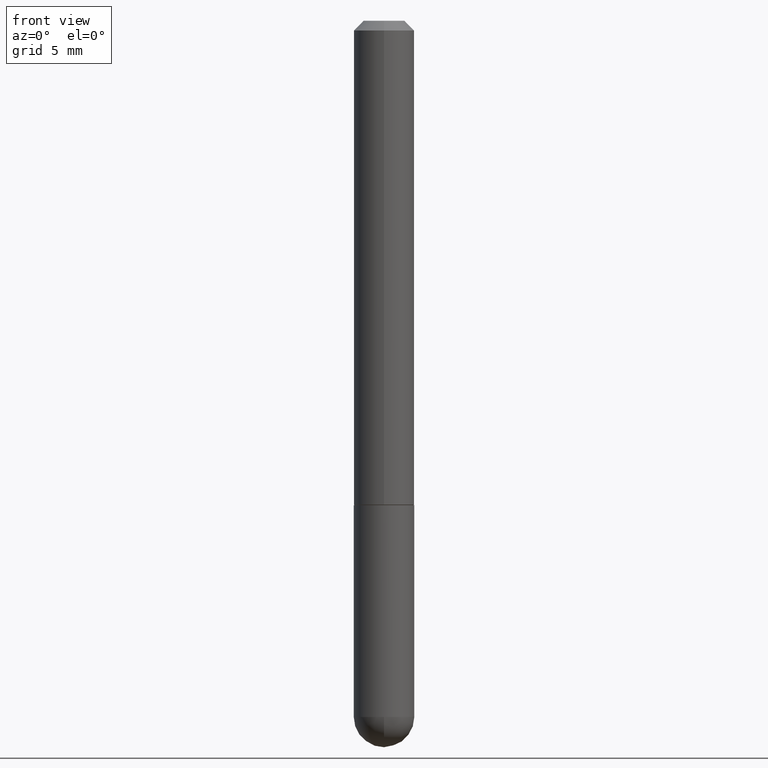
[diagram: clean part render]
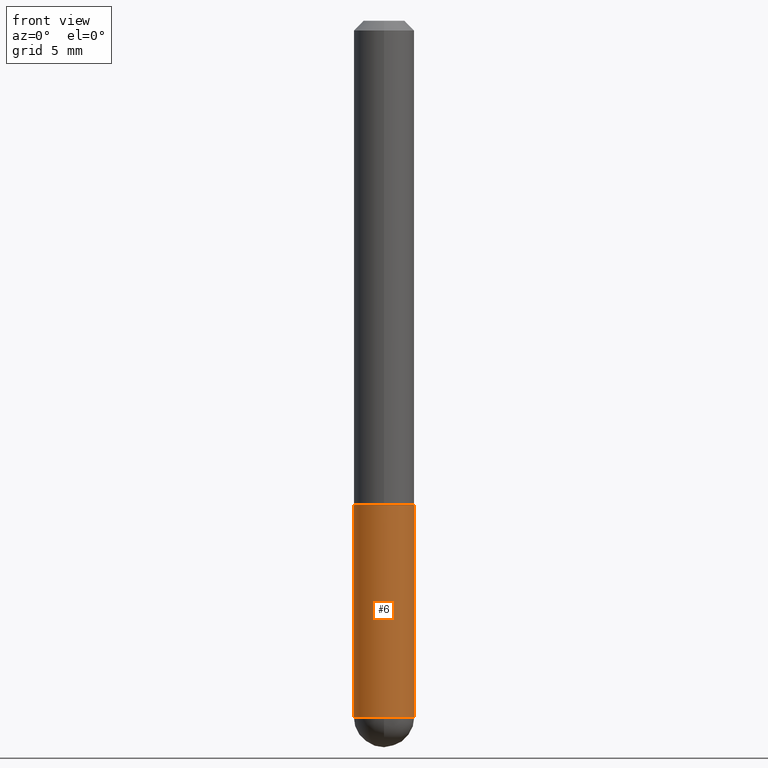
[diagram: same view with one face highlighted and labeled with its STEP entity id]
A machine part, front view. The second image highlights one B-rep face of the part: STEP entity #6.
In plain terms, the highlighted cylindrical surface (edge-blend (fillet) strip) has radius 1.5875 mm, axis along (-0, 0, 1).
Its self-contained STEP definition (entity closure, byte-faithful):
#4 = CIRCLE ( 'NONE', #287, 0.06250000000000001388 ) ;
#6 = ADVANCED_FACE ( 'NONE', ( #192 ), #360, .T. ) ;
#32 = CARTESIAN_POINT ( 'NONE',  ( 0.06250000000000001388, -3.927916506198536858E-15, -0.9999999999999996669 ) ) ;
#38 = DIRECTION ( 'NONE',  ( 1.000000000000000000, -6.982962677686267499E-15, 4.876176775795936353E-29 ) ) ;
#40 = AXIS2_PLACEMENT_3D ( 'NONE', #295, #330, #266 ) ;
#42 = VERTEX_POINT ( 'NONE', #327 ) ;
#48 = EDGE_CURVE ( 'NONE', #276, #148, #222, .T. ) ;
#49 = CARTESIAN_POINT ( 'NONE',  ( 2.445468806185136036E-29, -3.491481338843144399E-15, -0.9999999999999996669 ) ) ;
#59 = EDGE_CURVE ( 'NONE', #42, #389, #235, .T. ) ;
#71 = ORIENTED_EDGE ( 'NONE', *, *, #291, .T. ) ;
#73 = CARTESIAN_POINT ( 'NONE',  ( -0.06249999999999997918, 4.440892098500624683E-16, -3.074334431409315413E-30 ) ) ;
#96 = CIRCLE ( 'NONE', #178, 0.06249999999999995143 ) ;
#98 = DIRECTION ( 'NONE',  ( -2.445468806185136597E-29, 3.491481338843145583E-15, 1.000000000000000000 ) ) ;
#116 = CARTESIAN_POINT ( 'NONE',  ( 0.06249999999999997918, -4.364351673553915708E-16, 3.047610484872459170E-30 ) ) ;
#129 = CARTESIAN_POINT ( 'NONE',  ( 3.515361408891131616E-29, -5.019004424587019187E-15, -1.437499999999999112 ) ) ;
#141 = DIRECTION ( 'NONE',  ( -2.445468806185136877E-29, 3.491481338843145188E-15, 1.000000000000000000 ) ) ;
#148 = VERTEX_POINT ( 'NONE', #344 ) ;
#178 = AXIS2_PLACEMENT_3D ( 'NONE', #129, #98, #341 ) ;
#192 = FACE_OUTER_BOUND ( 'NONE', #260, .T. ) ;
#200 = VERTEX_POINT ( 'NONE', #32 ) ;
#201 = DIRECTION ( 'NONE',  ( -2.445468806185136597E-29, 3.491481338843145583E-15, 1.000000000000000000 ) ) ;
#219 = EDGE_CURVE ( 'NONE', #389, #200, #4, .T. ) ;
#222 = CIRCLE ( 'NONE', #40, 0.06249999999999995143 ) ;
#233 = ORIENTED_EDGE ( 'NONE', *, *, #59, .F. ) ;
#235 = LINE ( 'NONE', #73, #359 ) ;
#237 = DIRECTION ( 'NONE',  ( -2.445468806185136877E-29, 3.491481338843145188E-15, 1.000000000000000000 ) ) ;
#260 = EDGE_LOOP ( 'NONE', ( #233, #397, #381, #71, #350 ) ) ;
#263 = EDGE_CURVE ( 'NONE', #42, #276, #96, .T. ) ;
#266 = DIRECTION ( 'NONE',  ( 1.000000000000000000, -6.982962677686268288E-15, 0.000000000000000000 ) ) ;
#276 = VERTEX_POINT ( 'NONE', #406 ) ;
#287 = AXIS2_PLACEMENT_3D ( 'NONE', #49, #362, #296 ) ;
#291 = EDGE_CURVE ( 'NONE', #148, #200, #331, .T. ) ;
#295 = CARTESIAN_POINT ( 'NONE',  ( 3.515361408891131616E-29, -5.019004424587019187E-15, -1.437499999999999112 ) ) ;
#296 = DIRECTION ( 'NONE',  ( 1.000000000000000000, -6.982962677686269077E-15, 0.000000000000000000 ) ) ;
#327 = CARTESIAN_POINT ( 'NONE',  ( -0.06249999999999995143, -3.811153671865019966E-15, -1.437499999999999112 ) ) ;
#330 = DIRECTION ( 'NONE',  ( -2.445468806185136597E-29, 3.491481338843145583E-15, 1.000000000000000000 ) ) ;
#331 = LINE ( 'NONE', #116, #380 ) ;
#341 = DIRECTION ( 'NONE',  ( 1.000000000000000000, -6.982962677686268288E-15, 0.000000000000000000 ) ) ;
#344 = CARTESIAN_POINT ( 'NONE',  ( 0.06249999999999995143, -4.691678049070473462E-15, -1.437499999999999112 ) ) ;
#350 = ORIENTED_EDGE ( 'NONE', *, *, #219, .F. ) ;
#353 = CARTESIAN_POINT ( 'NONE',  ( 0.000000000000000000, 0.000000000000000000, 0.000000000000000000 ) ) ;
#359 = VECTOR ( 'NONE', #141, 39.37007874015748143 ) ;
#360 = CYLINDRICAL_SURFACE ( 'NONE', #400, 0.06249999999999997918 ) ;
#362 = DIRECTION ( 'NONE',  ( -2.445468806185136597E-29, 3.491481338843145583E-15, 1.000000000000000000 ) ) ;
#364 = CARTESIAN_POINT ( 'NONE',  ( -0.06250000000000001388, -3.811153671865019177E-15, -0.9999999999999996669 ) ) ;
#380 = VECTOR ( 'NONE', #237, 39.37007874015748143 ) ;
#381 = ORIENTED_EDGE ( 'NONE', *, *, #48, .T. ) ;
#389 = VERTEX_POINT ( 'NONE', #364 ) ;
#397 = ORIENTED_EDGE ( 'NONE', *, *, #263, .T. ) ;
#400 = AXIS2_PLACEMENT_3D ( 'NONE', #353, #201, #38 ) ;
#406 = CARTESIAN_POINT ( 'NONE',  ( -4.440892098500299770E-16, -0.06250000000000539846, -1.437499999999998890 ) ) ;